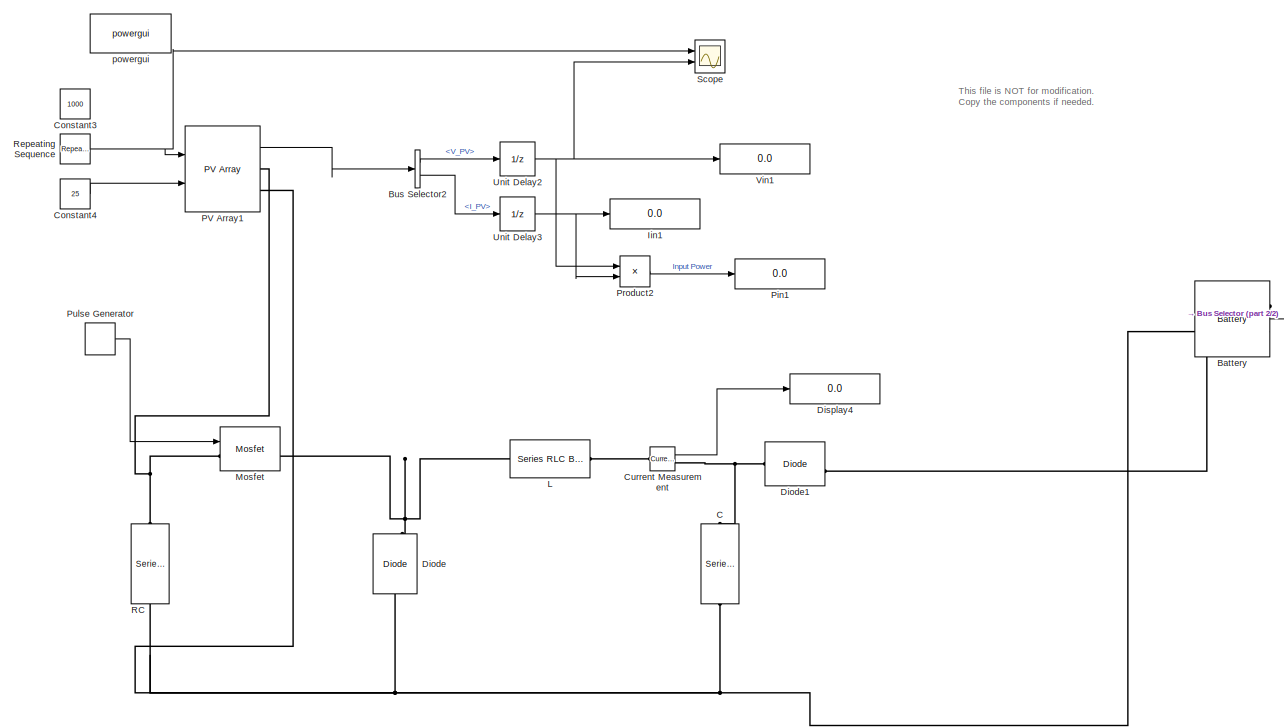
[diagram: root canvas - part 1/2, most of the canvas]
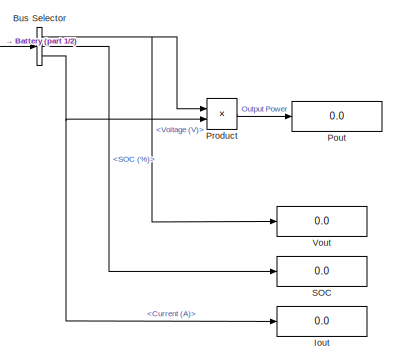
[diagram: root canvas - part 2/2, middle right region]
MODEL slx_38bc912a0be7
KIND model
CONFIG AbsTol = auto
CONFIG EnableMultiTasking = off
CONFIG FixedStep = auto
CONFIG MaxStep = auto
CONFIG MinStep = auto
CONFIG RelTol = 1e-3
CONFIG SampleTimeConstraint = Unconstrained
CONFIG SolverName = VariableStepAuto
CONFIG StartTime = 0.0
CONFIG StopTime = 6
BLOCK [Reference] Battery  REF=spsBatteryLib/Battery
  NameLocation = top
  Ports = [0, 1, 0, 0, 0, 2]
  SourceBlock = spsBatteryLib/Battery
  SourceProductBaseCode = PS
  SourceType = Battery
BLOCK [BusSelector] Bus Selector
  OutputSignals = Voltage (V),SOC (%),Current (A)
  Ports = [1, 3]
BLOCK [BusSelector] Bus Selector2
  OutputSignals = V_PV,I_PV
  Ports = [1, 2]
BLOCK [Reference] C  REF=spsSeriesRLCBranchLib/Series RLC Branch
  NameLocation = left
  Ports = [0, 0, 0, 0, 0, 1, 1]
  SourceBlock = spsSeriesRLCBranchLib/Series RLC Branch
  SourceProductBaseCode = PS
  SourceType = Series RLC Branch
BLOCK [Constant] Constant3
  Value = 1000
BLOCK [Constant] Constant4
  Value = 25
BLOCK [Reference] Current Measurement  REF=spsCurrentMeasurementLib/Current Measurement
  Ports = [0, 1, 0, 0, 0, 1, 1]
  SourceBlock = spsCurrentMeasurementLib/Current Measurement
  SourceProductBaseCode = PS
  SourceType = Current Measurement
  UserDataPersistent = on
BLOCK [Reference] Diode  REF=spsDiodeLib/Diode
  NameLocation = right
  Ports = [0, 1, 0, 0, 0, 1, 1]
  SourceBlock = spsDiodeLib/Diode
  SourceProductBaseCode = PS
  SourceType = Diode
BLOCK [Reference] Diode1  REF=spsDiodeLib/Diode
  Ports = [0, 1, 0, 0, 0, 1, 1]
  SourceBlock = spsDiodeLib/Diode
  SourceProductBaseCode = PS
  SourceType = Diode
BLOCK [Display] Display4
  Decimation = 1
  Ports = [1]
BLOCK [Display] Iin1
  Decimation = 1
  Ports = [1]
BLOCK [Display] Iout
  Decimation = 1
  Ports = [1]
BLOCK [Reference] L  REF=spsSeriesRLCBranchLib/Series RLC Branch
  NameLocation = top
  Ports = [0, 0, 0, 0, 0, 1, 1]
  SourceBlock = spsSeriesRLCBranchLib/Series RLC Branch
  SourceProductBaseCode = PS
  SourceType = Series RLC Branch
BLOCK [Reference] Mosfet  REF=spsMosfetLib/Mosfet
  Ports = [1, 1, 0, 0, 0, 1, 1]
  SourceBlock = spsMosfetLib/Mosfet
  SourceProductBaseCode = PS
  SourceType = Mosfet
BLOCK [Reference] PV Array1  REF=spsPVArrayLib/PV Array
  Ports = [2, 1, 0, 0, 0, 0, 2]
  SourceBlock = spsPVArrayLib/PV Array
  SourceProductBaseCode = PS
  SourceType = PV array
BLOCK [Display] Pin1
  Decimation = 1
  Ports = [1]
BLOCK [Display] Pout
  Decimation = 1
  Ports = [1]
BLOCK [Product] Product
  Ports = [2, 1]
BLOCK [Product] Product2
  Ports = [2, 1]
BLOCK [DiscretePulseGenerator] Pulse Generator
  Period = 2e-5
  Ports = [0, 1]
  PulseType = Time based
  PulseWidth = 53.57
BLOCK [Reference] RC  REF=spsSeriesRLCBranchLib/Series RLC Branch
  NameLocation = left
  Ports = [0, 0, 0, 0, 0, 1, 1]
  SourceBlock = spsSeriesRLCBranchLib/Series RLC Branch
  SourceProductBaseCode = PS
  SourceType = Series RLC Branch
BLOCK [Reference] Repeating Sequence  REF=simulink/Sources/Repeating
Sequence
  Ports = [0, 1]
  SourceBlock = simulink/Sources/Repeating\nSequence
  SourceProductBaseCode = SL
  SourceType = Repeating table
BLOCK [Display] SOC
  Decimation = 1
  Ports = [1]
BLOCK [Scope] Scope
  Floating = off
  NumInputPorts = 2
  Ports = [2]
  ScopeSpecificationString = Simulink.scopes.TimeScopeBlockCfg('CurrentConfiguration', extmgr.ConfigurationSet(extmgr.Configuration('Core','General UI',true),extmgr.Configuration('Core','Source UI',true),extmgr.Configuration('Sources','WiredSimulink',true),extmgr.Configuration('Visuals','Time Domain',true,'SerializedDisplays',{struct('MinYLimReal','-149.99942','MaxYLimReal','1349.99482','YLabelReal','','MinYLimMag',' 0.00000'...<+1424ch>
BLOCK [UnitDelay] Unit Delay2
  HasFrameUpgradeWarning = on
  SampleTime = -1
BLOCK [UnitDelay] Unit Delay3
  HasFrameUpgradeWarning = on
  SampleTime = -1
BLOCK [Display] Vin1
  Decimation = 1
  Ports = [1]
BLOCK [Display] Vout
  Decimation = 1
  Ports = [1]
BLOCK [Reference] powergui  REF=spspowerguiLib/powergui
  Ports = []
  Priority = 1
  SourceBlock = spspowerguiLib/powergui
  SourceProductBaseCode = PS
  SourceType = PSB option menu block
ANNOTATION (root): This file is NOT for modification. Copy the components if needed.
LINE Battery:1 -> Bus Selector:1
LINE Bus Selector2:1 -> Unit Delay2:1
LINE Bus Selector2:2 -> Unit Delay3:1
NET Bus Selector:1 -> Product:1, Vout:1
LINE Bus Selector:2 -> SOC:1
NET Bus Selector:3 -> Iout:1, Product:2
LINE Constant4:1 -> PV Array1:2
LINE Current Measurement:1 -> Display4:1
LINE PV Array1:1 -> Bus Selector2:1
LINE Product2:1 -> Pin1:1
LINE Product:1 -> Pout:1
LINE Pulse Generator:1 -> Mosfet:1
NET Repeating Sequence:1 -> PV Array1:1, Scope:1
NET Unit Delay2:1 -> Product2:1, Scope:2, Vin1:1
NET Unit Delay3:1 -> Iin1:1, Product2:2
PLINE Battery:LConn1 -- Diode1:RConn1
PNET net1: Battery:LConn2 -- C:RConn1 -- Diode:LConn1 -- PV Array1:RConn2 -- RC:RConn1
PNET net2: C:LConn1 -- Current Measurement:RConn1 -- Diode1:LConn1
PLINE Current Measurement:LConn1 -- L:LConn1
PNET net3: Diode:RConn1 -- L:RConn1 -- Mosfet:RConn1
PNET net4: Mosfet:LConn1 -- PV Array1:RConn1 -- RC:LConn1
note: NET lines group one-source signal fan-out (src -> all destinations, sorted); 1:1 wires keep LINE; PNET lines group multi-terminal physical nets as a canonical sorted terminal list (undirected conserving connections); 2-terminal nets keep the pairwise PLINE form
